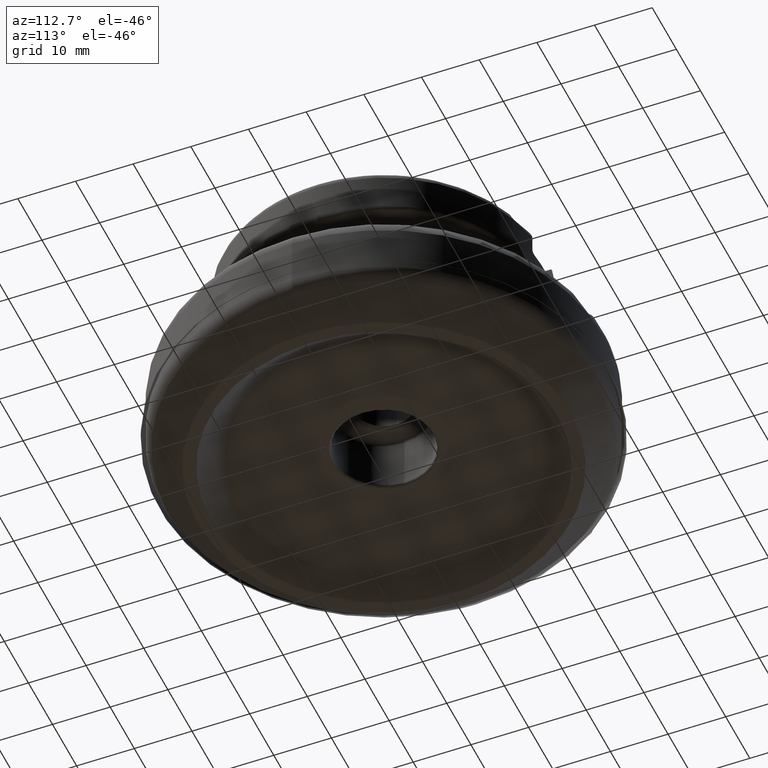
[diagram: clean part render]
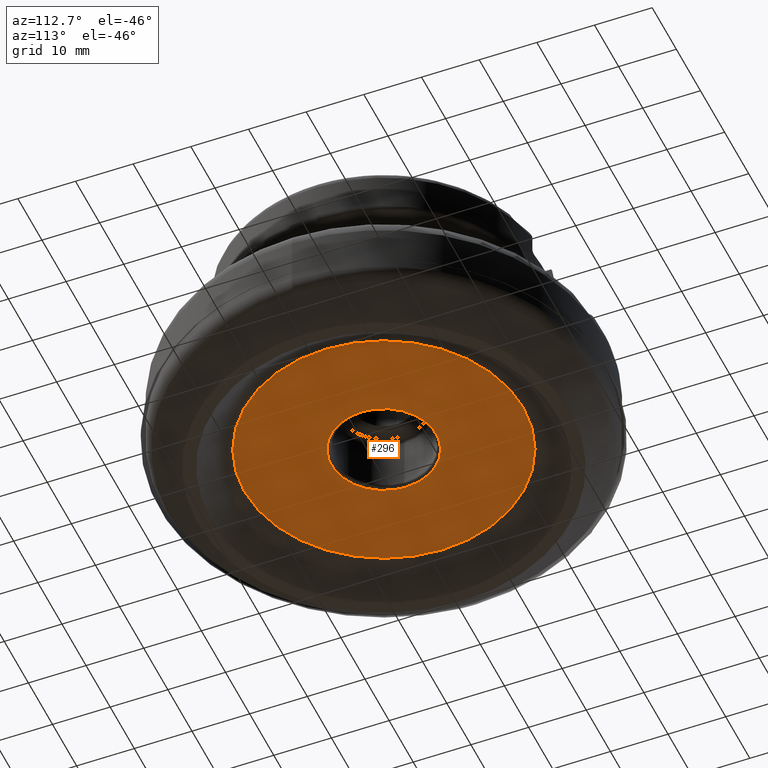
[diagram: same view with one face highlighted and labeled with its STEP entity id]
A machine part, auxiliary view. The second image highlights one B-rep face of the part: STEP entity #296.
In plain terms, the highlighted planar face has unit normal (-0, 0, -1).
Its self-contained STEP definition (entity closure, byte-faithful):
#168=PLANE('',#1121);
#296=ADVANCED_FACE('',(#379,#380),#168,.T.);
#379=FACE_BOUND('',#477,.T.);
#380=FACE_BOUND('',#478,.T.);
#477=EDGE_LOOP('',(#637));
#478=EDGE_LOOP('',(#638));
#637=ORIENTED_EDGE('',*,*,#923,.T.);
#638=ORIENTED_EDGE('',*,*,#924,.T.);
#830=VERTEX_POINT('',#1961);
#831=VERTEX_POINT('',#1963);
#923=EDGE_CURVE('',#830,#830,#992,.T.);
#924=EDGE_CURVE('',#831,#831,#993,.T.);
#992=CIRCLE('',#1119,9.1);
#993=CIRCLE('',#1120,24.1767541680424);
#1119=AXIS2_PLACEMENT_3D('',#1960,#1287,#1288);
#1120=AXIS2_PLACEMENT_3D('',#1962,#1289,#1290);
#1121=AXIS2_PLACEMENT_3D('',#1964,#1291,#1292);
#1287=DIRECTION('',(1.17145536458252E-15,0.,1.));
#1288=DIRECTION('',(-1.,0.,1.14377372042427E-15));
#1289=DIRECTION('',(-1.17145536458252E-15,0.,-1.));
#1290=DIRECTION('',(-1.,0.,1.18390323013054E-15));
#1291=DIRECTION('',(-1.17145536458252E-15,0.,-1.));
#1292=DIRECTION('',(-1.,0.,1.17180570802233E-15));
#1960=CARTESIAN_POINT('',(5.74629538299548E-15,0.,4.9052619132811));
#1961=CARTESIAN_POINT('',(-9.1,0.,4.90526191328111));
#1962=CARTESIAN_POINT('',(5.74629538299548E-15,0.,4.9052619132811));
#1963=CARTESIAN_POINT('',(-24.1767541680424,0.,4.90526191328113));
#1964=CARTESIAN_POINT('',(5.74629538299548E-15,-8.5,4.9052619132811));